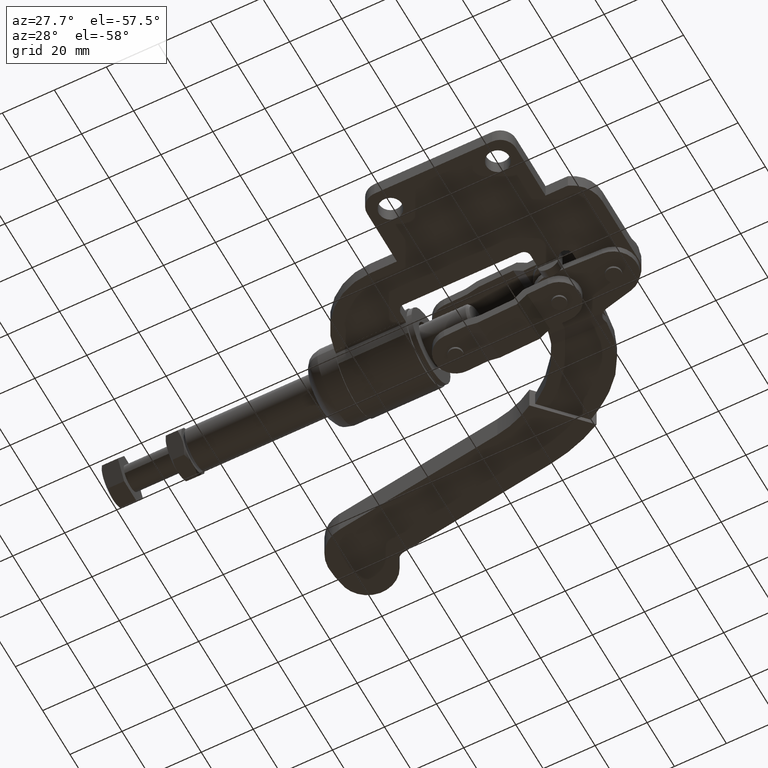
[diagram: clean part render]
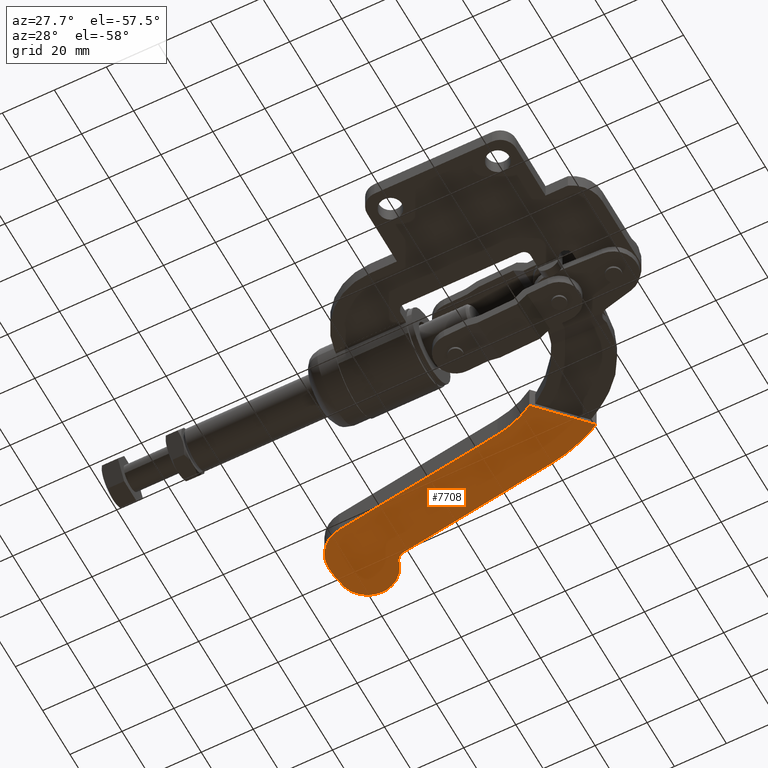
[diagram: same view with one face highlighted and labeled with its STEP entity id]
A machine part, auxiliary view. The second image highlights one B-rep face of the part: STEP entity #7708.
In plain terms, the highlighted planar face has unit normal (-0, 0, 1).
Its self-contained STEP definition (entity closure, byte-faithful):
#67 = DIRECTION ( 'NONE',  ( -0.06829611865464320400, -0.9976650941957981900, 1.947642275824244400E-016 ) ) ;
#105 = CARTESIAN_POINT ( 'NONE',  ( -43.24663130496335800, 93.01786971610445700, -5.000000000000123500 ) ) ;
#392 = CARTESIAN_POINT ( 'NONE',  ( -166.7269739405516900, 18.05687971720151800, -5.000000000000116400 ) ) ;
#704 = CARTESIAN_POINT ( 'NONE',  ( -140.6304392586735600, 89.90337728634668200, -5.000000000000129700 ) ) ;
#768 = EDGE_LOOP ( 'NONE', ( #1040, #4883, #7061, #2737, #6142, #3871, #7778, #6582, #7059, #4067, #4430 ) ) ;
#812 = DIRECTION ( 'NONE',  ( 6.415676789143483400E-017, -1.996119609410255400E-016, -1.000000000000000000 ) ) ;
#841 = VERTEX_POINT ( 'NONE', #6952 ) ;
#859 = VERTEX_POINT ( 'NONE', #5591 ) ;
#875 = EDGE_CURVE ( 'NONE', #1113, #841, #7078, .T. ) ;
#936 = CIRCLE ( 'NONE', #5765, 10.99999999999999300 ) ;
#1030 = CARTESIAN_POINT ( 'NONE',  ( -124.9837657323876200, 108.0617364018856100, -5.000000000000132300 ) ) ;
#1040 = ORIENTED_EDGE ( 'NONE', *, *, #7759, .T. ) ;
#1058 = DIRECTION ( 'NONE',  ( -0.1786463771111851700, -0.9839133457500453000, 1.849394981902438000E-016 ) ) ;
#1112 = LINE ( 'NONE', #105, #7916 ) ;
#1113 = VERTEX_POINT ( 'NONE', #7410 ) ;
#1217 = CARTESIAN_POINT ( 'NONE',  ( -124.6993253080741800, 112.3202508648215700, -5.000000000000133200 ) ) ;
#1378 = CARTESIAN_POINT ( 'NONE',  ( -64.40505564650973700, 99.81146864996387100, -5.000000000000126100 ) ) ;
#1404 = CARTESIAN_POINT ( 'NONE',  ( -64.40505564650973700, 99.81146864996387100, -5.000000000000126100 ) ) ;
#1702 = CARTESIAN_POINT ( 'NONE',  ( -139.0110974564083800, 101.7936141270254600, -5.000000000000131500 ) ) ;
#1832 = VERTEX_POINT ( 'NONE', #5172 ) ;
#1836 = CARTESIAN_POINT ( 'NONE',  ( -128.5856042405344500, 110.5559697519787800, -5.000000000000132300 ) ) ;
#2030 = DIRECTION ( 'NONE',  ( 0.9992332293475072500, 0.03915294839155598200, 5.446541525829843400E-017 ) ) ;
#2057 = EDGE_CURVE ( 'NONE', #841, #3484, #8217, .T. ) ;
#2083 = CARTESIAN_POINT ( 'NONE',  ( -150.3698283788497200, 111.5714852194463900, -5.000000000000134100 ) ) ;
#2113 = DIRECTION ( 'NONE',  ( -0.9908530700565708600, 0.1349451501887642700, -9.050659647879548500E-017 ) ) ;
#2376 = VERTEX_POINT ( 'NONE', #1836 ) ;
#2444 = VERTEX_POINT ( 'NONE', #1378 ) ;
#2449 = LINE ( 'NONE', #1404, #7667 ) ;
#2597 = VECTOR ( 'NONE', #1058, 1000.000000000000100 ) ;
#2737 = ORIENTED_EDGE ( 'NONE', *, *, #5530, .F. ) ;
#2884 = CARTESIAN_POINT ( 'NONE',  ( -59.91112883772824200, 75.54413522451048400, -5.000000000000121700 ) ) ;
#2901 = EDGE_CURVE ( 'NONE', #3484, #7071, #7980, .T. ) ;
#2905 = AXIS2_PLACEMENT_3D ( 'NONE', #1702, #7157, #4459 ) ;
#3058 = EDGE_CURVE ( 'NONE', #1832, #3202, #6648, .T. ) ;
#3157 = DIRECTION ( 'NONE',  ( 6.415676789143483400E-017, -1.996119609410255400E-016, -1.000000000000000000 ) ) ;
#3202 = VERTEX_POINT ( 'NONE', #2884 ) ;
#3209 = DIRECTION ( 'NONE',  ( -0.9992332293475072500, -0.03915294839155682200, 0.0000000000000000000 ) ) ;
#3390 = EDGE_CURVE ( 'NONE', #3202, #859, #1112, .T. ) ;
#3476 = CARTESIAN_POINT ( 'NONE',  ( -73.00106171353402800, 36.69412808736023400, -5.000000000000114600 ) ) ;
#3484 = VERTEX_POINT ( 'NONE', #5961 ) ;
#3558 = CIRCLE ( 'NONE', #7793, 63.70000000000007400 ) ;
#3610 = VERTEX_POINT ( 'NONE', #4189 ) ;
#3871 = ORIENTED_EDGE ( 'NONE', *, *, #3058, .F. ) ;
#4067 = ORIENTED_EDGE ( 'NONE', *, *, #875, .F. ) ;
#4148 = DIRECTION ( 'NONE',  ( 0.9992332293475073600, 0.03915294839155601000, 5.629217755959564400E-017 ) ) ;
#4189 = CARTESIAN_POINT ( 'NONE',  ( -150.2594170643855300, 108.7536475126864300, -5.000000000000134100 ) ) ;
#4324 = EDGE_CURVE ( 'NONE', #6807, #2376, #4740, .T. ) ;
#4407 = AXIS2_PLACEMENT_3D ( 'NONE', #3476, #8189, #4148 ) ;
#4430 = ORIENTED_EDGE ( 'NONE', *, *, #4476, .F. ) ;
#4459 = DIRECTION ( 'NONE',  ( 0.9992332293475073600, 0.03915294839155596100, 7.228014483236737700E-017 ) ) ;
#4476 = EDGE_CURVE ( 'NONE', #3610, #1113, #8001, .T. ) ;
#4523 = AXIS2_PLACEMENT_3D ( 'NONE', #8254, #8292, #7596 ) ;
#4620 = DIRECTION ( 'NONE',  ( 0.6901511432283904400, 0.7236652537607051200, -1.001743736619470100E-016 ) ) ;
#4740 = CIRCLE ( 'NONE', #5447, 4.268003255155546700 ) ;
#4883 = ORIENTED_EDGE ( 'NONE', *, *, #4324, .F. ) ;
#4896 = CARTESIAN_POINT ( 'NONE',  ( -139.2851010282317400, 108.0023902074853300, -5.000000000000133200 ) ) ;
#4994 = VECTOR ( 'NONE', #6436, 1000.000000000000100 ) ;
#5172 = CARTESIAN_POINT ( 'NONE',  ( -75.22234059009559800, 80.99539086017671300, -5.000000000000123500 ) ) ;
#5317 = DIRECTION ( 'NONE',  ( 6.415676789143483400E-017, -1.996119609410255400E-016, -1.000000000000000000 ) ) ;
#5447 = AXIS2_PLACEMENT_3D ( 'NONE', #1217, #5317, #3209 ) ;
#5486 = CARTESIAN_POINT ( 'NONE',  ( -73.00106171353402800, 36.69412808736023400, -5.000000000000114600 ) ) ;
#5530 = EDGE_CURVE ( 'NONE', #859, #2444, #3558, .T. ) ;
#5569 = DIRECTION ( 'NONE',  ( -0.9992332293475072500, -0.03915294839155660000, -7.885106708985491500E-017 ) ) ;
#5591 = CARTESIAN_POINT ( 'NONE',  ( -43.24663130496335800, 93.01786971610445700, -5.000000000000123500 ) ) ;
#5593 = DIRECTION ( 'NONE',  ( 0.9992332293475073600, 0.03915294839155602400, 6.570922257487896400E-017 ) ) ;
#5637 = FACE_OUTER_BOUND ( 'NONE', #768, .T. ) ;
#5765 = AXIS2_PLACEMENT_3D ( 'NONE', #4896, #812, #5569 ) ;
#5767 = CARTESIAN_POINT ( 'NONE',  ( -140.6304392586735600, 89.90337728634666800, -5.000000000000129700 ) ) ;
#5961 = CARTESIAN_POINT ( 'NONE',  ( -151.0018962085783900, 101.3237787463267900, -5.000000000000132300 ) ) ;
#6142 = ORIENTED_EDGE ( 'NONE', *, *, #3390, .F. ) ;
#6170 = AXIS2_PLACEMENT_3D ( 'NONE', #6346, #3157, #5593 ) ;
#6346 = CARTESIAN_POINT ( 'NONE',  ( -80.56616853757070400, 41.75760928593641800, -5.000000000000115500 ) ) ;
#6436 = DIRECTION ( 'NONE',  ( 0.9908530700565708600, -0.1349451501887642700, 9.050659647879549700E-017 ) ) ;
#6582 = ORIENTED_EDGE ( 'NONE', *, *, #2901, .F. ) ;
#6648 = CIRCLE ( 'NONE', #6170, 39.60000000000005800 ) ;
#6803 = DIRECTION ( 'NONE',  ( -6.415676789143483400E-017, 1.996119609410255400E-016, 1.000000000000000000 ) ) ;
#6807 = VERTEX_POINT ( 'NONE', #1030 ) ;
#6952 = CARTESIAN_POINT ( 'NONE',  ( -150.9830785867579000, 102.6131675508812300, -5.000000000000133200 ) ) ;
#7059 = ORIENTED_EDGE ( 'NONE', *, *, #2057, .F. ) ;
#7061 = ORIENTED_EDGE ( 'NONE', *, *, #8328, .F. ) ;
#7071 = VERTEX_POINT ( 'NONE', #704 ) ;
#7078 = LINE ( 'NONE', #2083, #8636 ) ;
#7157 = DIRECTION ( 'NONE',  ( -6.415676789143483400E-017, 1.996119609410255400E-016, 1.000000000000000000 ) ) ;
#7362 = EDGE_CURVE ( 'NONE', #7071, #1832, #8584, .T. ) ;
#7410 = CARTESIAN_POINT ( 'NONE',  ( -150.7462916092193600, 106.0721357456167200, -5.000000000000133200 ) ) ;
#7508 = PLANE ( 'NONE',  #4407 ) ;
#7596 = DIRECTION ( 'NONE',  ( 0.9992332293475073600, 0.03915294839155596100, 7.228014483236737700E-017 ) ) ;
#7667 = VECTOR ( 'NONE', #2113, 1000.000000000000100 ) ;
#7708 = ADVANCED_FACE ( 'NONE', ( #5637 ), #7508, .F. ) ;
#7759 = EDGE_CURVE ( 'NONE', #3610, #2376, #936, .T. ) ;
#7778 = ORIENTED_EDGE ( 'NONE', *, *, #7362, .F. ) ;
#7793 = AXIS2_PLACEMENT_3D ( 'NONE', #5486, #6803, #2030 ) ;
#7916 = VECTOR ( 'NONE', #4620, 1000.000000000000000 ) ;
#7980 = CIRCLE ( 'NONE', #4523, 11.99999999999993100 ) ;
#8001 = LINE ( 'NONE', #392, #2597 ) ;
#8189 = DIRECTION ( 'NONE',  ( -6.415676789143484600E-017, 1.996119609410255100E-016, 1.000000000000000000 ) ) ;
#8217 = CIRCLE ( 'NONE', #2905, 11.99999999999993100 ) ;
#8254 = CARTESIAN_POINT ( 'NONE',  ( -139.0110974564083800, 101.7936141270254600, -5.000000000000131500 ) ) ;
#8292 = DIRECTION ( 'NONE',  ( -6.415676789143483400E-017, 1.996119609410255400E-016, 1.000000000000000000 ) ) ;
#8328 = EDGE_CURVE ( 'NONE', #2444, #6807, #2449, .T. ) ;
#8584 = LINE ( 'NONE', #5767, #4994 ) ;
#8636 = VECTOR ( 'NONE', #67, 1000.000000000000100 ) ;